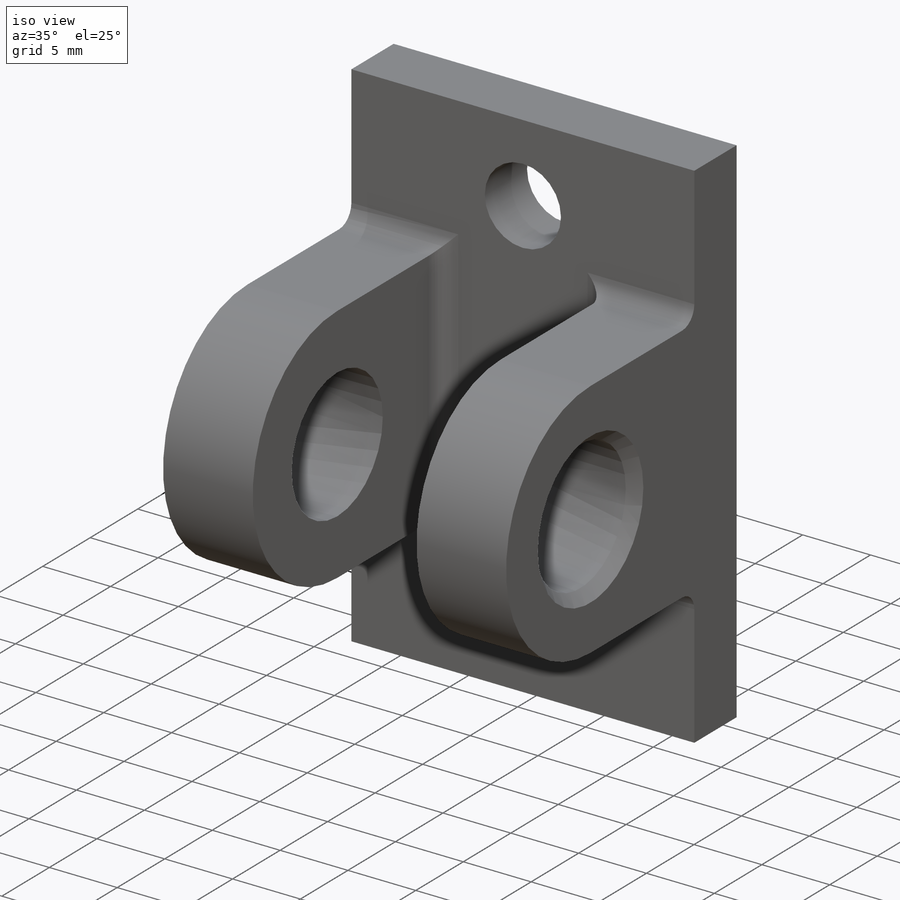
[diagram: iso view]
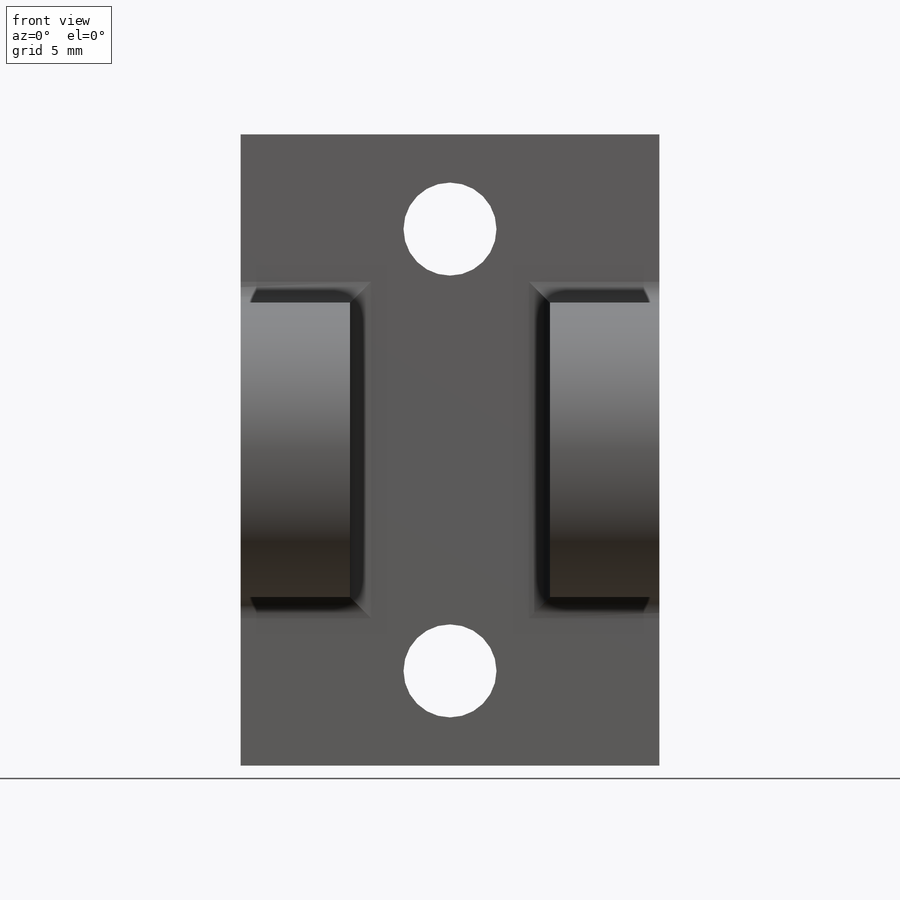
[diagram: front view]
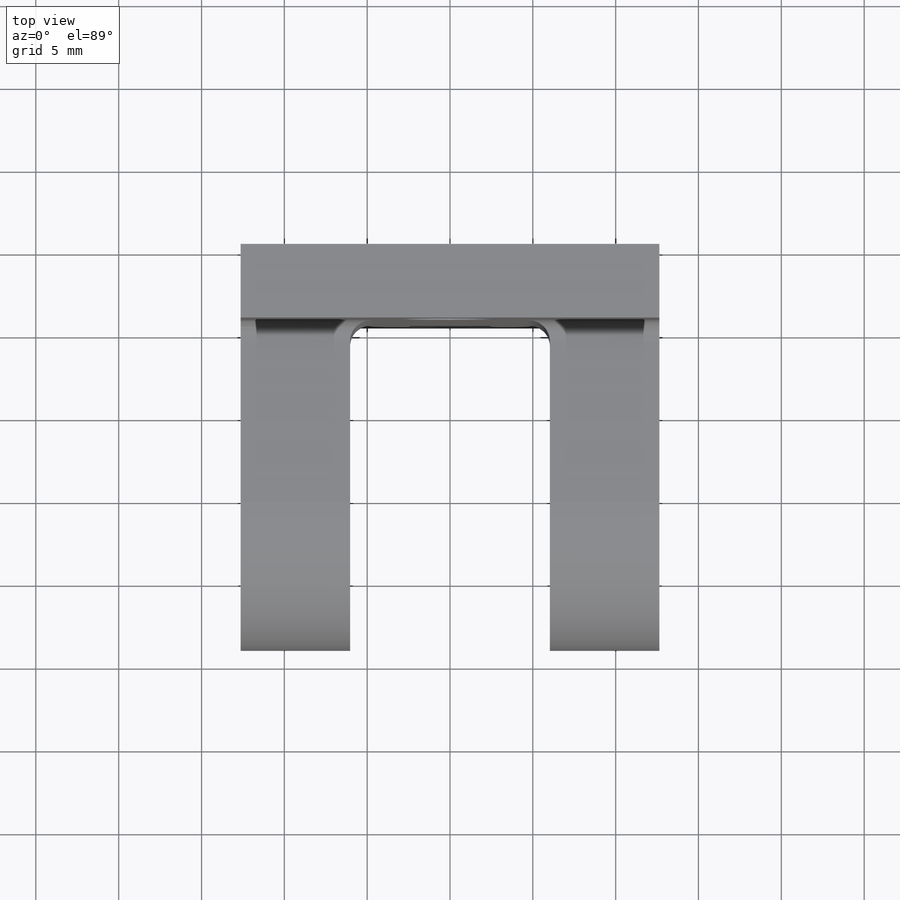
[diagram: top view]
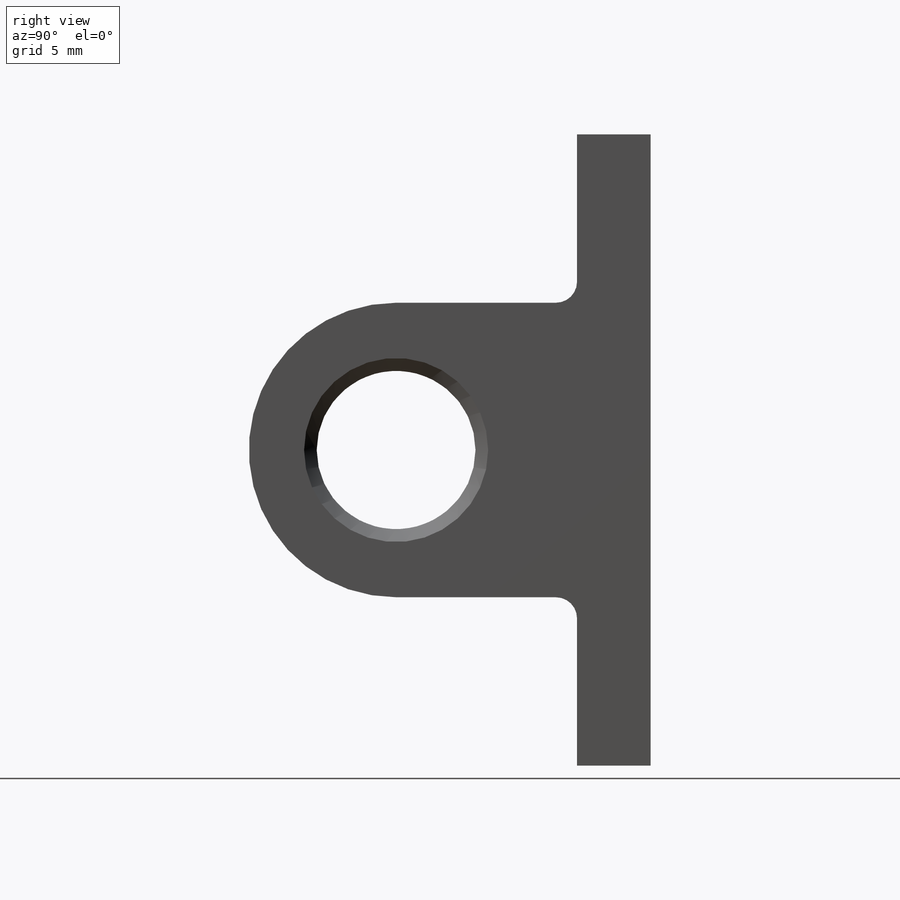
[diagram: right view]
SOLIDWORKS PART (.sldprt)
format: sldprt  version: not decoded by parser v0  size: 223,232 bytes
history: native  units: mm
features: sketch x4, fillet x3, extrude x2, cut_extrude x2, material x1, chamfer x1 (+13 scaffold rows collapsed)
feature tree (26):
  scaffold x13  (default folders/planes/origin — collapsed)
  material  "Material <not specified>"
  sketch  "Sketch1"  dims[D1=38.1mm D2=25.273mm]
  extrude  "Boss-Extrude1"  Depth=4.445mm
  sketch  "Sketch2"  dims[D1=17.78mm D2=6.604mm]
  extrude  "Boss-Extrude2"  Depth=19.812mm
  fillet  "Fillet1"  [1 undecoded]
  fillet  "Fillet2"  [1 undecoded]
  fillet  "Fillet3"  Radius=1.27mm
  sketch  "Sketch3"  dims[D1=9.5885mm]
  cut_extrude  "Cut-Extrude1"  [1 undecoded]
  chamfer  "Chamfer1"  Distance=0.762mm Angle=45deg
  sketch  "Sketch4"  dims[D1=5.6134mm D2=13.335mm]
  cut_extrude  "Cut-Extrude2"  [1 undecoded]
decode coverage: 8 of 12 modeling features carry decoded parameters
note: 4 parameter values undecoded
summary: no parameter record found for 4 features
note: suppression state not decoded; provenance and decode notes live in map.json
